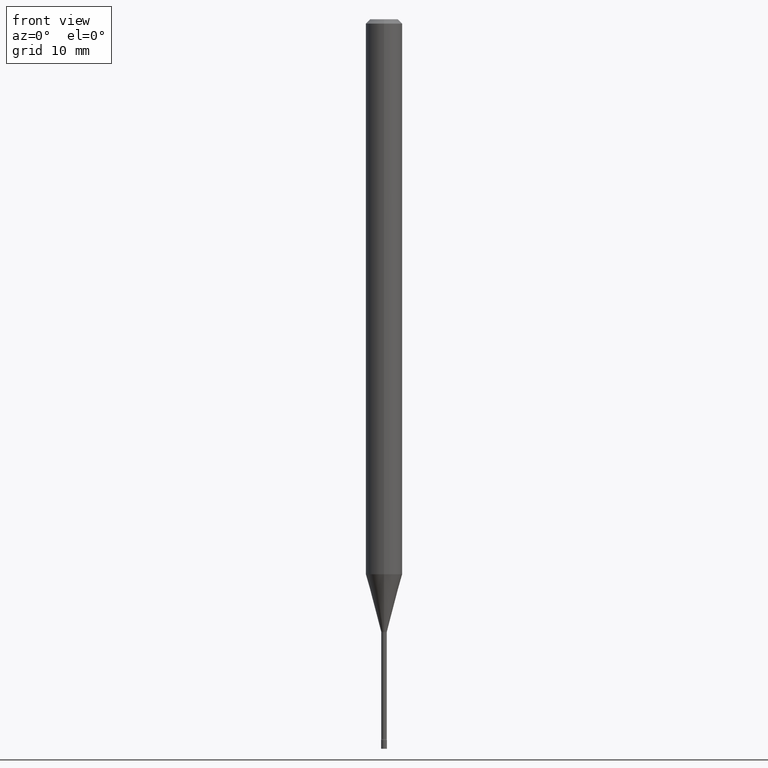
[diagram: clean part render]
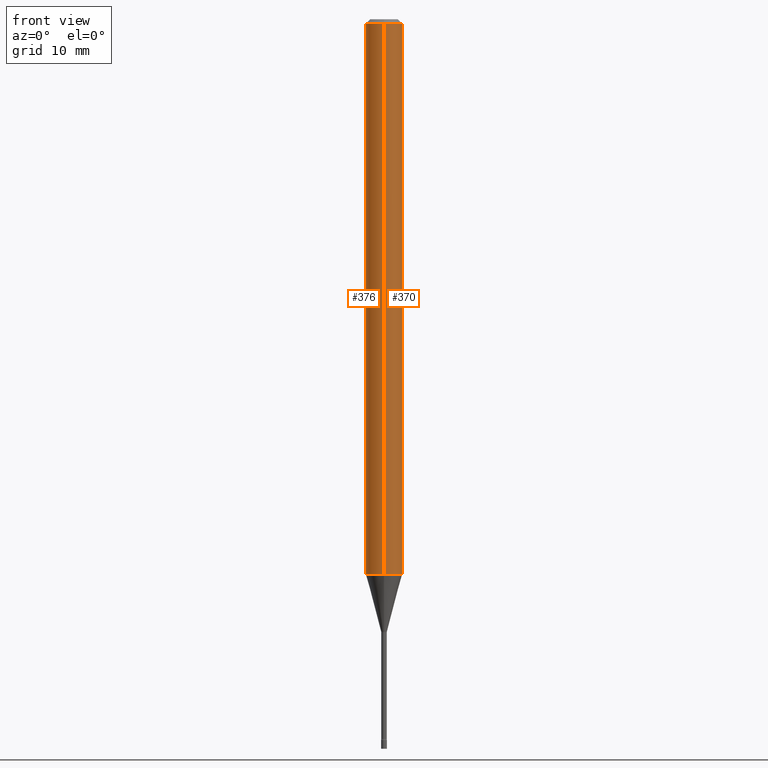
[diagram: same view with one multi-face feature highlighted, each face labeled with its STEP entity id]
A machine part, front view. The highlighted faces form ONE feature: a constant-radius fillet chain: 2 tangent blend faces with common blend radius 1.5875 mm. The faces share edges in the B-rep.
Their STEP definitions:
[1] entity #376 (Cylinder):
#1 = AXIS2_PLACEMENT_3D ( 'NONE', #275, #69, #158 ) ;
#63 = VERTEX_POINT ( 'NONE', #110 ) ;
#69 = DIRECTION ( 'NONE',  ( -2.445405021934253134E-29, 3.491572681520784952E-15, 1.000000000000000000 ) ) ;
#82 = DIRECTION ( 'NONE',  ( -2.445405021934253134E-29, 3.491572681520784952E-15, 1.000000000000000000 ) ) ;
#110 = CARTESIAN_POINT ( 'NONE',  ( -4.364351673553912750E-16, -0.06250000000000005551, -0.01499999999999981209 ) ) ;
#113 = EDGE_CURVE ( 'NONE', #497, #63, #508, .T. ) ;
#129 = CYLINDRICAL_SURFACE ( 'NONE', #305, 0.06250000000000000000 ) ;
#134 = DIRECTION ( 'NONE',  ( -6.982962677686265922E-15, -1.000000000000000000, 3.483106191921935554E-15 ) ) ;
#148 = EDGE_CURVE ( 'NONE', #377, #497, #259, .T. ) ;
#150 = ORIENTED_EDGE ( 'NONE', *, *, #354, .F. ) ;
#158 = DIRECTION ( 'NONE',  ( -6.982962677686265922E-15, -1.000000000000000000, 4.370956789862821150E-15 ) ) ;
#161 = ORIENTED_EDGE ( 'NONE', *, *, #148, .T. ) ;
#166 = CARTESIAN_POINT ( 'NONE',  ( -4.364351673553916201E-16, -0.06250000000000000000, 2.182232925950490595E-16 ) ) ;
#171 = CARTESIAN_POINT ( 'NONE',  ( 4.440892098500625669E-16, 0.06250000000000000000, -2.182232925950490595E-16 ) ) ;
#184 = AXIS2_PLACEMENT_3D ( 'NONE', #318, #400, #134 ) ;
#232 = ORIENTED_EDGE ( 'NONE', *, *, #235, .F. ) ;
#235 = EDGE_CURVE ( 'NONE', #262, #63, #481, .T. ) ;
#257 = CARTESIAN_POINT ( 'NONE',  ( 4.440892098501090604E-16, 0.06249999999999336642, -1.901828102118093167 ) ) ;
#258 = ORIENTED_EDGE ( 'NONE', *, *, #113, .T. ) ;
#259 = CIRCLE ( 'NONE', #1, 0.06250000000000000000 ) ;
#262 = VERTEX_POINT ( 'NONE', #441 ) ;
#271 = CARTESIAN_POINT ( 'NONE',  ( -4.364351673553452252E-16, -0.06250000000000664746, -1.901828102118092501 ) ) ;
#275 = CARTESIAN_POINT ( 'NONE',  ( 4.650739991775273824E-29, -6.640371046304054201E-15, -1.901828102118092945 ) ) ;
#285 = LINE ( 'NONE', #171, #445 ) ;
#292 = DIRECTION ( 'NONE',  ( -2.445405021934253134E-29, 3.491572681520784952E-15, 1.000000000000000000 ) ) ;
#296 = VECTOR ( 'NONE', #392, 39.37007874015748143 ) ;
#305 = AXIS2_PLACEMENT_3D ( 'NONE', #483, #292, #418 ) ;
#318 = CARTESIAN_POINT ( 'NONE',  ( 3.668107532901386708E-31, -5.237359022281188472E-17, -0.01500000000000003067 ) ) ;
#354 = EDGE_CURVE ( 'NONE', #377, #262, #285, .T. ) ;
#376 = ADVANCED_FACE ( 'NONE', ( #477 ), #129, .T. ) ;
#377 = VERTEX_POINT ( 'NONE', #257 ) ;
#392 = DIRECTION ( 'NONE',  ( -2.445405021934253134E-29, 3.491572681520784952E-15, 1.000000000000000000 ) ) ;
#400 = DIRECTION ( 'NONE',  ( -2.445405021934253134E-29, 3.491572681520784952E-15, 1.000000000000000000 ) ) ;
#407 = EDGE_LOOP ( 'NONE', ( #150, #161, #258, #232 ) ) ;
#418 = DIRECTION ( 'NONE',  ( -6.982962677686265922E-15, -1.000000000000000000, 3.491572681520784952E-15 ) ) ;
#441 = CARTESIAN_POINT ( 'NONE',  ( 4.440892098501093562E-16, 0.06249999999999993755, -0.01500000000000024751 ) ) ;
#445 = VECTOR ( 'NONE', #82, 39.37007874015748143 ) ;
#477 = FACE_OUTER_BOUND ( 'NONE', #407, .T. ) ;
#481 = CIRCLE ( 'NONE', #184, 0.06250000000000000000 ) ;
#483 = CARTESIAN_POINT ( 'NONE',  ( 0.000000000000000000, 0.000000000000000000, 0.000000000000000000 ) ) ;
#497 = VERTEX_POINT ( 'NONE', #271 ) ;
#508 = LINE ( 'NONE', #166, #296 ) ;
[2] entity #370 (Cylinder):
#5 = EDGE_CURVE ( 'NONE', #497, #377, #201, .T. ) ;
#50 = AXIS2_PLACEMENT_3D ( 'NONE', #182, #487, #293 ) ;
#52 = CARTESIAN_POINT ( 'NONE',  ( 3.668107532901386708E-31, -5.237359022281188472E-17, -0.01500000000000003067 ) ) ;
#63 = VERTEX_POINT ( 'NONE', #110 ) ;
#82 = DIRECTION ( 'NONE',  ( -2.445405021934253134E-29, 3.491572681520784952E-15, 1.000000000000000000 ) ) ;
#105 = EDGE_LOOP ( 'NONE', ( #179, #356, #221, #130 ) ) ;
#110 = CARTESIAN_POINT ( 'NONE',  ( -4.364351673553912750E-16, -0.06250000000000005551, -0.01499999999999981209 ) ) ;
#113 = EDGE_CURVE ( 'NONE', #497, #63, #508, .T. ) ;
#130 = ORIENTED_EDGE ( 'NONE', *, *, #113, .F. ) ;
#136 = DIRECTION ( 'NONE',  ( -6.982962677686265922E-15, -1.000000000000000000, 3.483106191921935554E-15 ) ) ;
#166 = CARTESIAN_POINT ( 'NONE',  ( -4.364351673553916201E-16, -0.06250000000000000000, 2.182232925950490595E-16 ) ) ;
#169 = CARTESIAN_POINT ( 'NONE',  ( 0.000000000000000000, 0.000000000000000000, 0.000000000000000000 ) ) ;
#171 = CARTESIAN_POINT ( 'NONE',  ( 4.440892098500625669E-16, 0.06250000000000000000, -2.182232925950490595E-16 ) ) ;
#179 = ORIENTED_EDGE ( 'NONE', *, *, #5, .T. ) ;
#182 = CARTESIAN_POINT ( 'NONE',  ( 4.650739991775273824E-29, -6.640371046304054201E-15, -1.901828102118092945 ) ) ;
#201 = CIRCLE ( 'NONE', #50, 0.06250000000000000000 ) ;
#215 = AXIS2_PLACEMENT_3D ( 'NONE', #52, #381, #136 ) ;
#221 = ORIENTED_EDGE ( 'NONE', *, *, #516, .F. ) ;
#243 = AXIS2_PLACEMENT_3D ( 'NONE', #169, #397, #286 ) ;
#257 = CARTESIAN_POINT ( 'NONE',  ( 4.440892098501090604E-16, 0.06249999999999336642, -1.901828102118093167 ) ) ;
#262 = VERTEX_POINT ( 'NONE', #441 ) ;
#271 = CARTESIAN_POINT ( 'NONE',  ( -4.364351673553452252E-16, -0.06250000000000664746, -1.901828102118092501 ) ) ;
#285 = LINE ( 'NONE', #171, #445 ) ;
#286 = DIRECTION ( 'NONE',  ( -6.982962677686265922E-15, -1.000000000000000000, 3.491572681520784952E-15 ) ) ;
#293 = DIRECTION ( 'NONE',  ( -6.982962677686265922E-15, -1.000000000000000000, 4.370956789862821150E-15 ) ) ;
#296 = VECTOR ( 'NONE', #392, 39.37007874015748143 ) ;
#323 = CYLINDRICAL_SURFACE ( 'NONE', #243, 0.06250000000000000000 ) ;
#354 = EDGE_CURVE ( 'NONE', #377, #262, #285, .T. ) ;
#356 = ORIENTED_EDGE ( 'NONE', *, *, #354, .T. ) ;
#358 = FACE_OUTER_BOUND ( 'NONE', #105, .T. ) ;
#370 = ADVANCED_FACE ( 'NONE', ( #358 ), #323, .T. ) ;
#377 = VERTEX_POINT ( 'NONE', #257 ) ;
#381 = DIRECTION ( 'NONE',  ( -2.445405021934253134E-29, 3.491572681520784952E-15, 1.000000000000000000 ) ) ;
#392 = DIRECTION ( 'NONE',  ( -2.445405021934253134E-29, 3.491572681520784952E-15, 1.000000000000000000 ) ) ;
#397 = DIRECTION ( 'NONE',  ( -2.445405021934253134E-29, 3.491572681520784952E-15, 1.000000000000000000 ) ) ;
#441 = CARTESIAN_POINT ( 'NONE',  ( 4.440892098501093562E-16, 0.06249999999999993755, -0.01500000000000024751 ) ) ;
#445 = VECTOR ( 'NONE', #82, 39.37007874015748143 ) ;
#466 = CIRCLE ( 'NONE', #215, 0.06250000000000000000 ) ;
#487 = DIRECTION ( 'NONE',  ( -2.445405021934253134E-29, 3.491572681520784952E-15, 1.000000000000000000 ) ) ;
#497 = VERTEX_POINT ( 'NONE', #271 ) ;
#508 = LINE ( 'NONE', #166, #296 ) ;
#516 = EDGE_CURVE ( 'NONE', #63, #262, #466, .T. ) ;